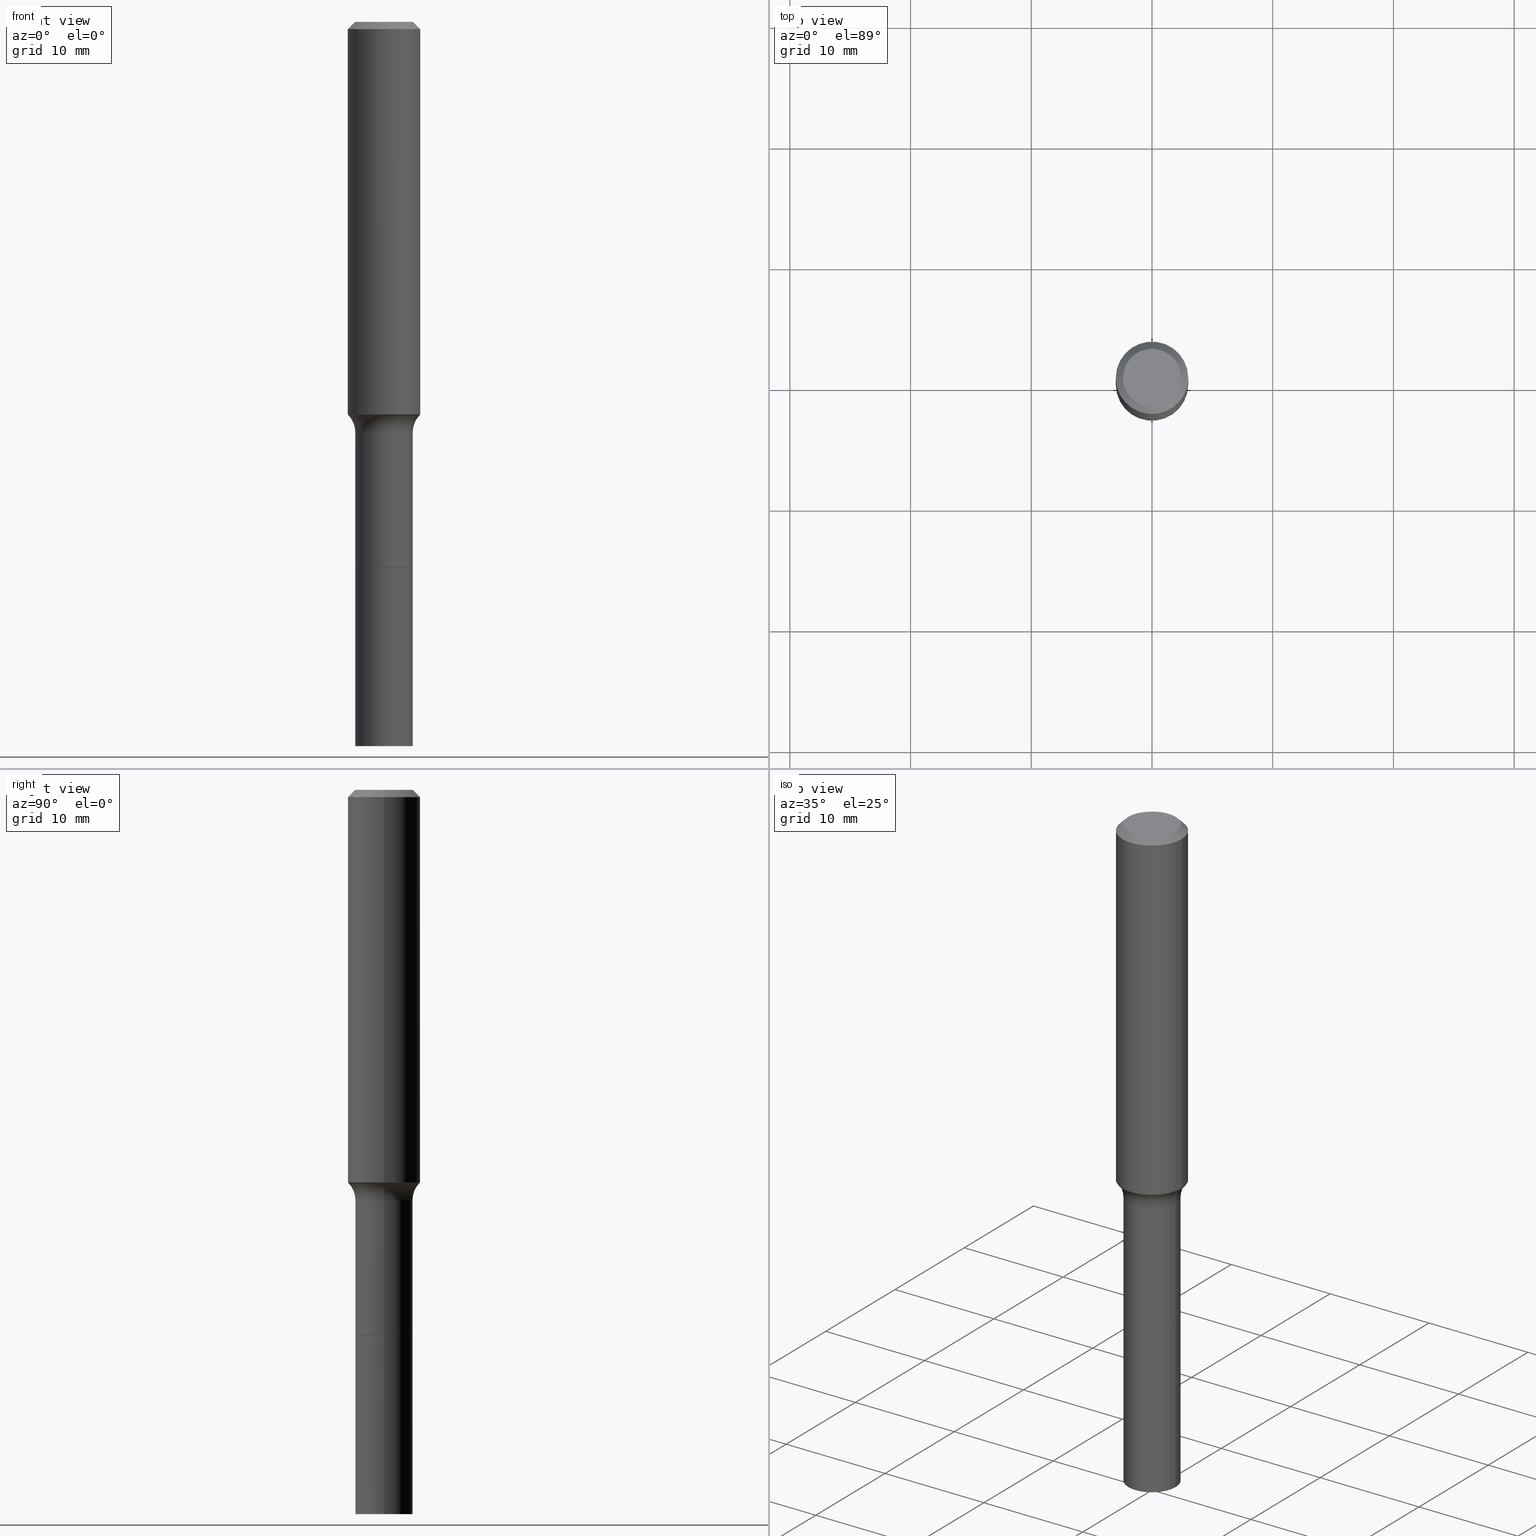
[diagram: canonical four-view strip — front | top / right | iso, engineering-drawing reading convention]
A machine part, canonical four-view strip (front | top / right | iso — engineering-drawing reading convention). The complete STEP part file that produces these views, byte-faithful:
ISO-10303-21;
HEADER;
FILE_DESCRIPTION (( 'STEP AP203' ),
    '1' );
FILE_NAME ('58814.STEP',
    '2025-04-01T15:25:16',
    ( '' ),
    ( '' ),
    'SwSTEP 2.0',
    'SolidWorks 2024',
    '' );
FILE_SCHEMA (( 'CONFIG_CONTROL_DESIGN' ));
ENDSEC;

DATA;
#1 = ORIENTED_EDGE ( 'NONE', *, *, #401, .F. ) ;
#2 = CIRCLE ( 'NONE', #53, 0.09375000000000001388 ) ;
#3 = AXIS2_PLACEMENT_3D ( 'NONE', #310, #108, #66 ) ;
#4 = EDGE_LOOP ( 'NONE', ( #306, #396, #493, #312 ) ) ;
#5 = FACE_OUTER_BOUND ( 'NONE', #321, .T. ) ;
#6 = EDGE_CURVE ( 'NONE', #352, #118, #2, .T. ) ;
#7 = ORIENTED_EDGE ( 'NONE', *, *, #231, .F. ) ;
#8 = EDGE_LOOP ( 'NONE', ( #204, #317, #486, #475 ) ) ;
#9 = VERTEX_POINT ( 'NONE', #397 ) ;
#10 = CARTESIAN_POINT ( 'NONE',  ( -0.1152417038704663249, -3.662964008439744293E-15, -1.283640131194999867 ) ) ;
#11 = VECTOR ( 'NONE', #170, 39.37007874015748143 ) ;
#12 = CARTESIAN_POINT ( 'NONE',  ( 0.1152417038704663804, -5.286534080897948923E-15, -1.283640131194999867 ) ) ;
#13 = ADVANCED_FACE ( 'NONE', ( #49 ), #124, .T. ) ;
#14 = DIRECTION ( 'NONE',  ( -2.445468806185136877E-29, 3.491481338843145188E-15, 1.000000000000000000 ) ) ;
#15 = CARTESIAN_POINT ( 'NONE',  ( -0.09324999999999998568, -5.546813269799320197E-15, -1.779199999999999893 ) ) ;
#16 = CYLINDRICAL_SURFACE ( 'NONE', #134, 0.09375000000000006939 ) ;
#17 = AXIS2_PLACEMENT_3D ( 'NONE', #64, #294, #429 ) ;
#18 = CIRCLE ( 'NONE', #171, 0.08000000000000007105 ) ;
#19 = CIRCLE ( 'NONE', #421, 0.1180999999999999966 ) ;
#20 = ADVANCED_FACE ( 'NONE', ( #5 ), #449, .T. ) ;
#21 =( NAMED_UNIT ( * ) PLANE_ANGLE_UNIT ( ) SI_UNIT ( $, .RADIAN. ) );
#22 = CARTESIAN_POINT ( 'NONE',  ( 5.776197320209328408E-31, -8.246878922347560526E-17, -0.02362000000000014435 ) ) ;
#23 = AXIS2_PLACEMENT_3D ( 'NONE', #485, #155, #222 ) ;
#24 = ADVANCED_FACE ( 'NONE', ( #168 ), #287, .F. ) ;
#25 = DIRECTION ( 'NONE',  ( -2.445468806185136877E-29, 3.491481338843145188E-15, 1.000000000000000000 ) ) ;
#26 = DIRECTION ( 'NONE',  ( 1.000000000000000000, -6.982962677686266711E-15, 4.876176775795936353E-29 ) ) ;
#27 = DIRECTION ( 'NONE',  ( -2.445468806185136597E-29, 3.491481338843145583E-15, 1.000000000000000000 ) ) ;
#28 = PERSON_AND_ORGANIZATION ( #355, #298 ) ;
#29 = DIRECTION ( 'NONE',  ( 7.105427357601001859E-15, 1.000000000000000000, -3.491481338843145583E-15 ) ) ;
#30 = AXIS2_PLACEMENT_3D ( 'NONE', #383, #188, #300 ) ;
#31 = AXIS2_PLACEMENT_3D ( 'NONE', #175, #218, #26 ) ;
#32 = CC_DESIGN_DATE_AND_TIME_ASSIGNMENT ( #428, #309, ( #130 ) ) ;
#33 = DIRECTION ( 'NONE',  ( -2.445468806185136597E-29, 3.491481338843145583E-15, 1.000000000000000000 ) ) ;
#34 = ORIENTED_EDGE ( 'NONE', *, *, #496, .T. ) ;
#35 = LINE ( 'NONE', #270, #500 ) ;
#36 = ORIENTED_EDGE ( 'NONE', *, *, #504, .F. ) ;
#37 = AXIS2_PLACEMENT_3D ( 'NONE', #440, #456, #86 ) ;
#38 = CONICAL_SURFACE ( 'NONE', #414, 0.1180999999999999966, 0.7853981633974461696 ) ;
#39 = CARTESIAN_POINT ( 'NONE',  ( 0.09375000000000006939, -6.866696349102812717E-15, -1.779199999999999893 ) ) ;
#40 = VERTEX_POINT ( 'NONE', #242 ) ;
#41 = DIRECTION ( 'NONE',  ( -2.445468806185136597E-29, 3.491481338843145583E-15, 1.000000000000000000 ) ) ;
#42 = LINE ( 'NONE', #200, #50 ) ;
#43 = VERTEX_POINT ( 'NONE', #15 ) ;
#44 = CARTESIAN_POINT ( 'NONE',  ( 4.349755365561502845E-29, -6.210297857400303709E-15, -1.778700000000000170 ) ) ;
#45 = DIRECTION ( 'NONE',  ( -2.438088387897960049E-29, 3.491481338843145188E-15, 1.000000000000000000 ) ) ;
#46 = ORIENTED_EDGE ( 'NONE', *, *, #517, .F. ) ;
#47 = ADVANCED_FACE ( 'NONE', ( #157 ), #376, .T. ) ;
#48 = APPLICATION_PROTOCOL_DEFINITION ( 'international standard', 'config_control_design', 1994, #476 ) ;
#49 = FACE_OUTER_BOUND ( 'NONE', #8, .T. ) ;
#50 = VECTOR ( 'NONE', #436, 39.37007874015748143 ) ;
#51 = VERTEX_POINT ( 'NONE', #12 ) ;
#52 = DIRECTION ( 'NONE',  ( -2.445468806185136597E-29, 3.491481338843145583E-15, 1.000000000000000000 ) ) ;
#53 = AXIS2_PLACEMENT_3D ( 'NONE', #44, #487, #83 ) ;
#54 = CALENDAR_DATE ( 2025, 1, 4 ) ;
#55 = EDGE_CURVE ( 'NONE', #269, #322, #88, .T. ) ;
#56 = DIRECTION ( 'NONE',  ( 0.7071067811866320607, -2.468850131083142557E-15, 0.7071067811864629737 ) ) ;
#57 = APPROVAL_STATUS ( 'not_yet_approved' ) ;
#58 = COORDINATED_UNIVERSAL_TIME_OFFSET ( 5, 0, .BEHIND. ) ;
#59 = CARTESIAN_POINT ( 'NONE',  ( 0.000000000000000000, 0.000000000000000000, 0.000000000000000000 ) ) ;
#60 = EDGE_CURVE ( 'NONE', #51, #269, #360, .T. ) ;
#61 = CARTESIAN_POINT ( 'NONE',  ( 0.09447999999999998066, -7.704367267948738690E-16, -3.085620075131172158E-17 ) ) ;
#62 = AXIS2_PLACEMENT_3D ( 'NONE', #237, #313, #407 ) ;
#63 = DIRECTION ( 'NONE',  ( -2.445468806185136597E-29, 3.491481338843145583E-15, 1.000000000000000000 ) ) ;
#64 = CARTESIAN_POINT ( 'NONE',  ( 7.545787641473140628E-46, -1.077338491108201769E-31, -3.085620075131671975E-17 ) ) ;
#65 = DIRECTION ( 'NONE',  ( 1.000000000000000000, -6.982962677686261189E-15, 0.000000000000000000 ) ) ;
#66 = DIRECTION ( 'NONE',  ( 1.000000000000000000, 0.000000000000000000, 0.000000000000000000 ) ) ;
#67 = COORDINATED_UNIVERSAL_TIME_OFFSET ( 5, 0, .BEHIND. ) ;
#68 = DIRECTION ( 'NONE',  ( 1.000000000000000000, -6.982962677686268288E-15, 4.883557194083112901E-29 ) ) ;
#69 = EDGE_CURVE ( 'NONE', #388, #424, #335, .T. ) ;
#70 = AXIS2_PLACEMENT_3D ( 'NONE', #90, #326, #128 ) ;
#71 = LOCAL_TIME ( 11, 25, 16.00000000000000000, #58 ) ;
#72 = FACE_OUTER_BOUND ( 'NONE', #87, .T. ) ;
#73 = EDGE_LOOP ( 'NONE', ( #1, #197 ) ) ;
#74 = MANIFOLD_SOLID_BREP ( 'Body-Move/Copy2[2]', #160 ) ;
#75 =( NAMED_UNIT ( * ) SI_UNIT ( $, .STERADIAN. ) SOLID_ANGLE_UNIT ( ) );
#76 = CARTESIAN_POINT ( 'NONE',  ( 0.09375000000000001388, -6.866696349102811928E-15, -1.779199999999999893 ) ) ;
#77 = ORIENTED_EDGE ( 'NONE', *, *, #136, .F. ) ;
#78 = CC_DESIGN_PERSON_AND_ORGANIZATION_ASSIGNMENT ( #417, #211, ( #205 ) ) ;
#79 = FACE_OUTER_BOUND ( 'NONE', #516, .T. ) ;
#80 = CIRCLE ( 'NONE', #144, 0.1180999999999999966 ) ;
#81 = ORIENTED_EDGE ( 'NONE', *, *, #295, .T. ) ;
#82 = APPROVAL_PERSON_ORGANIZATION ( #448, #217, #247 ) ;
#83 = DIRECTION ( 'NONE',  ( 1.000000000000000000, -6.982962677686261189E-15, 0.000000000000000000 ) ) ;
#84 = CARTESIAN_POINT ( 'NONE',  ( -0.1181000000000001493, -3.631952688209819497E-15, -1.280574983861703098 ) ) ;
#85 = ORIENTED_EDGE ( 'NONE', *, *, #164, .T. ) ;
#86 = DIRECTION ( 'NONE',  ( -1.000000000000000000, 6.982962677686265922E-15, -4.876176775795935793E-29 ) ) ;
#87 = EDGE_LOOP ( 'NONE', ( #392, #437, #363, #249 ) ) ;
#88 = LINE ( 'NONE', #10, #285 ) ;
#89 = EDGE_CURVE ( 'NONE', #223, #153, #348, .T. ) ;
#90 = CARTESIAN_POINT ( 'NONE',  ( 3.139101899204768444E-29, -4.481805563857509473E-15, -1.283640131194999867 ) ) ;
#91 = CARTESIAN_POINT ( 'NONE',  ( 4.350978099964594525E-29, -6.212043598069725213E-15, -1.779199999999999893 ) ) ;
#92 = CALENDAR_DATE ( 2025, 1, 4 ) ;
#93 = CC_DESIGN_PERSON_AND_ORGANIZATION_ASSIGNMENT ( #281, #166, ( #115 ) ) ;
#94 = DIRECTION ( 'NONE',  ( -2.445468806185136597E-29, 3.491481338843145583E-15, 1.000000000000000000 ) ) ;
#95 = APPROVAL_DATE_TIME ( #373, #460 ) ;
#96 = AXIS2_PLACEMENT_3D ( 'NONE', #110, #514, #181 ) ;
#97 = DIRECTION ( 'NONE',  ( -1.000000000000000000, 6.982962677686266711E-15, 0.000000000000000000 ) ) ;
#98 = CIRCLE ( 'NONE', #490, 0.09324999999999998568 ) ;
#99 = PERSON_AND_ORGANIZATION_ROLE ( 'classification_officer' ) ;
#100 = CARTESIAN_POINT ( 'NONE',  ( 0.1180999999999999966, -8.926936027602933910E-16, -0.02362000000000014435 ) ) ;
#101 = CARTESIAN_POINT ( 'NONE',  ( 4.350978099964594525E-29, -6.212043598069725213E-15, -1.779199999999999893 ) ) ;
#102 = EDGE_CURVE ( 'NONE', #43, #352, #207, .T. ) ;
#103 = DATE_TIME_ROLE ( 'classification_date' ) ;
#104 = CARTESIAN_POINT ( 'NONE',  ( 0.09375000000000001388, -6.864950608433390424E-15, -1.778700000000000170 ) ) ;
#105 = DIRECTION ( 'NONE',  ( 1.000000000000000000, -6.982962677686265922E-15, 0.000000000000000000 ) ) ;
#106 = ORIENTED_EDGE ( 'NONE', *, *, #337, .F. ) ;
#107 = FACE_OUTER_BOUND ( 'NONE', #120, .T. ) ;
#108 = DIRECTION ( 'NONE',  ( 0.000000000000000000, 0.000000000000000000, 1.000000000000000000 ) ) ;
#109 = ADVANCED_FACE ( 'NONE', ( #366 ), #133, .T. ) ;
#110 = CARTESIAN_POINT ( 'NONE',  ( 3.272526356436949336E-29, -4.672300327639896745E-15, -1.338200000000000056 ) ) ;
#111 = DIRECTION ( 'NONE',  ( 1.000000000000000000, -6.982962677686266711E-15, 4.876176775795935793E-29 ) ) ;
#112 = CIRCLE ( 'NONE', #466, 0.09375000000000001388 ) ;
#113 = CIRCLE ( 'NONE', #431, 0.1152417038704663249 ) ;
#114 = ORIENTED_EDGE ( 'NONE', *, *, #69, .T. ) ;
#115 = PRODUCT ( '58814', '58814', '', ( #399 ) ) ;
#116 = DIRECTION ( 'NONE',  ( 1.000000000000000000, -6.982962677686263555E-15, 0.000000000000000000 ) ) ;
#117 = ADVANCED_FACE ( 'NONE', ( #121 ), #272, .T. ) ;
#118 = VERTEX_POINT ( 'NONE', #104 ) ;
#119 = DIRECTION ( 'NONE',  ( -2.445468806185136597E-29, 3.491481338843145583E-15, 1.000000000000000000 ) ) ;
#120 = EDGE_LOOP ( 'NONE', ( #154, #229, #276, #398 ) ) ;
#121 = FACE_OUTER_BOUND ( 'NONE', #198, .T. ) ;
#122 = EDGE_LOOP ( 'NONE', ( #258, #353, #34, #390 ) ) ;
#123 = CIRCLE ( 'NONE', #227, 0.09324999999999998568 ) ;
#124 = CYLINDRICAL_SURFACE ( 'NONE', #452, 0.1181000000000000660 ) ;
#125 = DIRECTION ( 'NONE',  ( 1.000000000000000000, -6.982962677686268288E-15, 4.883557194083112901E-29 ) ) ;
#126 = DIRECTION ( 'NONE',  ( 1.000000000000000000, -6.982962677686263555E-15, 0.000000000000000000 ) ) ;
#127 = ORIENTED_EDGE ( 'NONE', *, *, #164, .F. ) ;
#128 = DIRECTION ( 'NONE',  ( 1.000000000000000000, -6.982962677686263555E-15, 0.000000000000000000 ) ) ;
#129 = LENGTH_MEASURE_WITH_UNIT ( LENGTH_MEASURE( 0.02539999999999999897 ), #230 );
#130 = PRODUCT_DEFINITION ( 'UNKNOWN', '', #205, #341 ) ;
#131 = ORIENTED_EDGE ( 'NONE', *, *, #330, .T. ) ;
#132 = DIRECTION ( 'NONE',  ( 1.000000000000000000, -6.982962677686269077E-15, 0.000000000000000000 ) ) ;
#133 = CONICAL_SURFACE ( 'NONE', #420, 0.09324999999999998568, 0.7853981633975678500 ) ;
#134 = AXIS2_PLACEMENT_3D ( 'NONE', #101, #63, #328 ) ;
#135 = COORDINATED_UNIVERSAL_TIME_OFFSET ( 5, 0, .BEHIND. ) ;
#136 = EDGE_CURVE ( 'NONE', #424, #388, #499, .T. ) ;
#137 = DIRECTION ( 'NONE',  ( 0.6819983600624985876, -2.208861293262476197E-15, 0.7313537016191703488 ) ) ;
#138 = AXIS2_PLACEMENT_3D ( 'NONE', #375, #381, #461 ) ;
#139 = CARTESIAN_POINT ( 'NONE',  ( 0.1737499999999999600, -5.885590092887885901E-15, -1.338200000000000056 ) ) ;
#140 = ORIENTED_EDGE ( 'NONE', *, *, #433, .T. ) ;
#141 = FACE_OUTER_BOUND ( 'NONE', #122, .T. ) ;
#142 = CARTESIAN_POINT ( 'NONE',  ( 3.272526356436949336E-29, -4.672300327639896745E-15, -1.338200000000000056 ) ) ;
#143 = ORIENTED_EDGE ( 'NONE', *, *, #192, .T. ) ;
#144 = AXIS2_PLACEMENT_3D ( 'NONE', #22, #219, #463 ) ;
#145 = LOCAL_TIME ( 11, 25, 16.00000000000000000, #67 ) ;
#146 = DIRECTION ( 'NONE',  ( -2.445468806185136597E-29, 3.491481338843145583E-15, 1.000000000000000000 ) ) ;
#147 = ADVANCED_FACE ( 'NONE', ( #141 ), #506, .T. ) ;
#148 = CARTESIAN_POINT ( 'NONE',  ( 4.350978099964594525E-29, -6.212043598069725213E-15, -1.779199999999999893 ) ) ;
#149 = ORIENTED_EDGE ( 'NONE', *, *, #246, .T. ) ;
#150 = ORIENTED_EDGE ( 'NONE', *, *, #60, .T. ) ;
#151 = ADVANCED_FACE ( 'NONE', ( #107 ), #413, .F. ) ;
#152 = VECTOR ( 'NONE', #137, 39.37007874015748143 ) ;
#153 = VERTEX_POINT ( 'NONE', #339 ) ;
#154 = ORIENTED_EDGE ( 'NONE', *, *, #370, .F. ) ;
#155 = DIRECTION ( 'NONE',  ( -2.445468806185136597E-29, 3.491481338843145583E-15, 1.000000000000000000 ) ) ;
#156 = VERTEX_POINT ( 'NONE', #469 ) ;
#157 = FACE_OUTER_BOUND ( 'NONE', #439, .T. ) ;
#158 = ORIENTED_EDGE ( 'NONE', *, *, #330, .F. ) ;
#159 = CARTESIAN_POINT ( 'NONE',  ( 3.772893820736570314E-46, -5.386692455541008845E-32, -1.542810037565835988E-17 ) ) ;
#160 = CLOSED_SHELL ( 'NONE', ( #109, #488, #13, #47, #151, #283, #302, #444, #384, #473, #467, #290, #455, #147 ) ) ;
#161 = ORIENTED_EDGE ( 'NONE', *, *, #425, .F. ) ;
#162 = AXIS2_PLACEMENT_3D ( 'NONE', #325, #94, #125 ) ;
#163 = VERTEX_POINT ( 'NONE', #510 ) ;
#164 = EDGE_CURVE ( 'NONE', #474, #40, #318, .T. ) ;
#165 = CARTESIAN_POINT ( 'NONE',  ( 5.776197320209328408E-31, -8.246878922347560526E-17, -0.02362000000000014435 ) ) ;
#166 = PERSON_AND_ORGANIZATION_ROLE ( 'design_owner' ) ;
#167 = CARTESIAN_POINT ( 'NONE',  ( -0.09324999999999998568, -5.549462496973431398E-15, -1.779199999999999893 ) ) ;
#168 = FACE_OUTER_BOUND ( 'NONE', #228, .T. ) ;
#169 = CC_DESIGN_PERSON_AND_ORGANIZATION_ASSIGNMENT ( #28, #472, ( #130 ) ) ;
#170 = DIRECTION ( 'NONE',  ( -2.445468806185136877E-29, 3.491481338843145188E-15, 1.000000000000000000 ) ) ;
#171 = AXIS2_PLACEMENT_3D ( 'NONE', #214, #29, #220 ) ;
#172 = CIRCLE ( 'NONE', #304, 0.09375000000000001388 ) ;
#173 = LOCAL_TIME ( 11, 25, 16.00000000000000000, #462 ) ;
#174 = EDGE_CURVE ( 'NONE', #269, #223, #18, .T. ) ;
#175 = CARTESIAN_POINT ( 'NONE',  ( 0.000000000000000000, 0.000000000000000000, 0.000000000000000000 ) ) ;
#176 =( GEOMETRIC_REPRESENTATION_CONTEXT ( 3 ) GLOBAL_UNCERTAINTY_ASSIGNED_CONTEXT ( ( #316 ) ) GLOBAL_UNIT_ASSIGNED_CONTEXT ( ( #324, #21, #75 ) ) REPRESENTATION_CONTEXT ( 'NONE', 'WORKASPACE' ) );
#177 = APPROVAL_DATE_TIME ( #503, #410 ) ;
#178 = DIRECTION ( 'NONE',  ( 1.000000000000000000, -6.982962677686269077E-15, 0.000000000000000000 ) ) ;
#179 = ORIENTED_EDGE ( 'NONE', *, *, #55, .F. ) ;
#180 = FACE_OUTER_BOUND ( 'NONE', #358, .T. ) ;
#181 = DIRECTION ( 'NONE',  ( 1.000000000000000000, -6.982962677686265922E-15, 0.000000000000000000 ) ) ;
#182 = DIRECTION ( 'NONE',  ( 2.445468806185136597E-29, -3.491481338843145583E-15, -1.000000000000000000 ) ) ;
#183 = DIRECTION ( 'NONE',  ( 1.000000000000000000, -6.982962677686269077E-15, 0.000000000000000000 ) ) ;
#184 = EDGE_CURVE ( 'NONE', #386, #266, #112, .T. ) ;
#185 = ORIENTED_EDGE ( 'NONE', *, *, #208, .T. ) ;
#186 = AXIS2_PLACEMENT_3D ( 'NONE', #497, #41, #403 ) ;
#187 = AXIS2_PLACEMENT_3D ( 'NONE', #445, #45, #365 ) ;
#188 = DIRECTION ( 'NONE',  ( -2.445468806185136597E-29, 3.491481338843145583E-15, 1.000000000000000000 ) ) ;
#189 = LINE ( 'NONE', #193, #342 ) ;
#190 = ORIENTED_EDGE ( 'NONE', *, *, #184, .T. ) ;
#191 = VERTEX_POINT ( 'NONE', #338 ) ;
#192 = EDGE_CURVE ( 'NONE', #40, #474, #226, .T. ) ;
#193 = CARTESIAN_POINT ( 'NONE',  ( 0.1181000000000000660, -8.246878922347485584E-16, 5.758764772215003944E-30 ) ) ;
#194 = ORIENTED_EDGE ( 'NONE', *, *, #102, .T. ) ;
#195 = DIRECTION ( 'NONE',  ( -2.445468806185136877E-29, 3.491481338843145188E-15, 1.000000000000000000 ) ) ;
#196 = TOROIDAL_SURFACE ( 'NONE', #162, 0.1737499999999999600, 0.08000000000000007105 ) ;
#197 = ORIENTED_EDGE ( 'NONE', *, *, #253, .F. ) ;
#198 = EDGE_LOOP ( 'NONE', ( #209, #81, #303, #158 ) ) ;
#199 = DIRECTION ( 'NONE',  ( -2.445468806185136597E-29, 3.491481338843145583E-15, 1.000000000000000000 ) ) ;
#200 = CARTESIAN_POINT ( 'NONE',  ( -0.1180999999999999966, 7.422191030112725094E-16, -0.02362000000000014435 ) ) ;
#201 = EDGE_CURVE ( 'NONE', #153, #223, #297, .T. ) ;
#202 = ORIENTED_EDGE ( 'NONE', *, *, #391, .F. ) ;
#203 = DIRECTION ( 'NONE',  ( -2.445468806185136597E-29, 3.491481338843145583E-15, 1.000000000000000000 ) ) ;
#204 = ORIENTED_EDGE ( 'NONE', *, *, #337, .T. ) ;
#205 = PRODUCT_DEFINITION_FORMATION_WITH_SPECIFIED_SOURCE ( 'ANY', '', #115, .NOT_KNOWN. ) ;
#206 = APPROVAL_STATUS ( 'not_yet_approved' ) ;
#207 = LINE ( 'NONE', #167, #430 ) ;
#208 = EDGE_CURVE ( 'NONE', #9, #156, #80, .T. ) ;
#209 = ORIENTED_EDGE ( 'NONE', *, *, #136, .T. ) ;
#210 = DIRECTION ( 'NONE',  ( -2.445468806185136597E-29, 3.491481338843145583E-15, 1.000000000000000000 ) ) ;
#211 = PERSON_AND_ORGANIZATION_ROLE ( 'design_supplier' ) ;
#212 = AXIS2_PLACEMENT_3D ( 'NONE', #305, #478, #116 ) ;
#213 = EDGE_CURVE ( 'NONE', #352, #223, #422, .T. ) ;
#214 = CARTESIAN_POINT ( 'NONE',  ( -0.1737499999999999600, -3.437732324256722956E-15, -1.338200000000000056 ) ) ;
#215 = AXIS2_PLACEMENT_3D ( 'NONE', #241, #235, #451 ) ;
#216 = CYLINDRICAL_SURFACE ( 'NONE', #468, 0.09374999999999998612 ) ;
#217 = APPROVAL ( #206, 'UNSPECIFIED' ) ;
#218 = DIRECTION ( 'NONE',  ( -2.445468806185136597E-29, 3.491481338843145583E-15, 1.000000000000000000 ) ) ;
#219 = DIRECTION ( 'NONE',  ( -2.445468806185136597E-29, 3.491481338843145583E-15, 1.000000000000000000 ) ) ;
#220 = DIRECTION ( 'NONE',  ( -1.000000000000000000, 7.105427357600997914E-15, 0.000000000000000000 ) ) ;
#221 = VECTOR ( 'NONE', #56, 39.37007874015748143 ) ;
#222 = DIRECTION ( 'NONE',  ( 1.000000000000000000, -6.982962677686266711E-15, 4.876176775795935793E-29 ) ) ;
#223 = VERTEX_POINT ( 'NONE', #296 ) ;
#224 = ORIENTED_EDGE ( 'NONE', *, *, #425, .T. ) ;
#225 = ORIENTED_EDGE ( 'NONE', *, *, #344, .T. ) ;
#226 = CIRCLE ( 'NONE', #17, 0.09447999999999998066 ) ;
#227 = AXIS2_PLACEMENT_3D ( 'NONE', #411, #52, #327 ) ;
#228 = EDGE_LOOP ( 'NONE', ( #190, #140 ) ) ;
#229 = ORIENTED_EDGE ( 'NONE', *, *, #174, .T. ) ;
#230 =( LENGTH_UNIT ( ) NAMED_UNIT ( * ) SI_UNIT ( $, .METRE. ) );
#231 = EDGE_CURVE ( 'NONE', #322, #156, #513, .T. ) ;
#232 = LINE ( 'NONE', #39, #240 ) ;
#233 = DIMENSIONAL_EXPONENTS ( 1.000000000000000000, 0.000000000000000000, 0.000000000000000000, 0.000000000000000000, 0.000000000000000000, 0.000000000000000000, 0.000000000000000000 ) ;
#234 = ORIENTED_EDGE ( 'NONE', *, *, #517, .T. ) ;
#235 = DIRECTION ( 'NONE',  ( 2.438088387897960049E-29, -3.491481338843145188E-15, -1.000000000000000000 ) ) ;
#236 = ORIENTED_EDGE ( 'NONE', *, *, #213, .T. ) ;
#237 = CARTESIAN_POINT ( 'NONE',  ( 5.776686413970529753E-29, -8.247577218615279626E-15, -2.362200000000000077 ) ) ;
#238 = LINE ( 'NONE', #406, #256 ) ;
#239 = EDGE_CURVE ( 'NONE', #51, #153, #377, .T. ) ;
#240 = VECTOR ( 'NONE', #308, 39.37007874015748143 ) ;
#241 = CARTESIAN_POINT ( 'NONE',  ( 5.776686413970529753E-29, -8.247577218615279626E-15, -2.362200000000000077 ) ) ;
#242 = CARTESIAN_POINT ( 'NONE',  ( -0.09447999999999998066, 7.009847083995354710E-16, -3.085620075132147757E-17 ) ) ;
#243 = SECURITY_CLASSIFICATION_LEVEL ( 'unclassified' ) ;
#244 = AXIS2_PLACEMENT_3D ( 'NONE', #387, #33, #481 ) ;
#245 = LINE ( 'NONE', #416, #221 ) ;
#246 = EDGE_CURVE ( 'NONE', #322, #191, #286, .T. ) ;
#247 = APPROVAL_ROLE ( '' ) ;
#248 = DATE_AND_TIME ( #92, #173 ) ;
#249 = ORIENTED_EDGE ( 'NONE', *, *, #89, .F. ) ;
#250 = FACE_OUTER_BOUND ( 'NONE', #271, .T. ) ;
#251 = ORIENTED_EDGE ( 'NONE', *, *, #295, .F. ) ;
#252 = CARTESIAN_POINT ( 'NONE',  ( -0.09374999999999998612, 6.661338147750938256E-16, -4.611501647113973295E-30 ) ) ;
#253 = EDGE_CURVE ( 'NONE', #43, #163, #98, .T. ) ;
#254 = AXIS2_PLACEMENT_3D ( 'NONE', #257, #427, #418 ) ;
#255 = DIRECTION ( 'NONE',  ( -1.000000000000000000, 6.982962677686266711E-15, 0.000000000000000000 ) ) ;
#256 = VECTOR ( 'NONE', #14, 39.37007874015748143 ) ;
#257 = CARTESIAN_POINT ( 'NONE',  ( 5.776686413970529753E-29, -8.247577218615279626E-15, -2.362200000000000077 ) ) ;
#258 = ORIENTED_EDGE ( 'NONE', *, *, #102, .F. ) ;
#259 = CARTESIAN_POINT ( 'NONE',  ( 5.776197320209328408E-31, -8.246878922347560526E-17, -0.02362000000000014435 ) ) ;
#260 = DIRECTION ( 'NONE',  ( -6.982962677686266711E-15, -1.000000000000000000, 3.491481338843145583E-15 ) ) ;
#261 = CARTESIAN_POINT ( 'NONE',  ( -0.1152417038704663804, -3.662964008439744293E-15, -1.283640131194999867 ) ) ;
#262 = EDGE_LOOP ( 'NONE', ( #251, #114, #131, #315 ) ) ;
#263 = AXIS2_PLACEMENT_3D ( 'NONE', #354, #502, #508 ) ;
#264 = DIRECTION ( 'NONE',  ( 2.438088387897960049E-29, -3.491481338843145188E-15, -1.000000000000000000 ) ) ;
#265 = CC_DESIGN_PERSON_AND_ORGANIZATION_ASSIGNMENT ( #329, #334, ( #205 ) ) ;
#266 = VERTEX_POINT ( 'NONE', #340 ) ;
#267 = APPLICATION_PROTOCOL_DEFINITION ( 'international standard', 'config_control_design', 1994, #389 ) ;
#268 = EDGE_LOOP ( 'NONE', ( #280, #194, #434, #480 ) ) ;
#269 = VERTEX_POINT ( 'NONE', #261 ) ;
#270 = CARTESIAN_POINT ( 'NONE',  ( -0.09375000000000006939, -5.545909783294630499E-15, -1.779199999999999893 ) ) ;
#271 = EDGE_LOOP ( 'NONE', ( #438, #236, #447, #202 ) ) ;
#272 = CYLINDRICAL_SURFACE ( 'NONE', #263, 0.09375000000000006939 ) ;
#273 = ADVANCED_FACE ( 'NONE', ( #368 ), #16, .T. ) ;
#274 = CLOSED_SHELL ( 'NONE', ( #117, #20, #273, #24 ) ) ;
#275 = AXIS2_PLACEMENT_3D ( 'NONE', #139, #260, #105 ) ;
#276 = ORIENTED_EDGE ( 'NONE', *, *, #89, .T. ) ;
#277 = CARTESIAN_POINT ( 'NONE',  ( 3.139101899204768444E-29, -4.481805563857509473E-15, -1.283640131194999867 ) ) ;
#278 = PRODUCT_DEFINITION_SHAPE ( 'NONE', 'NONE',  #130 ) ;
#279 = PLANE ( 'NONE',  #187 ) ;
#280 = ORIENTED_EDGE ( 'NONE', *, *, #401, .T. ) ;
#281 = PERSON_AND_ORGANIZATION ( #355, #298 ) ;
#282 = DIRECTION ( 'NONE',  ( 1.000000000000000000, -6.982962677686266711E-15, 4.876176775795936353E-29 ) ) ;
#283 = ADVANCED_FACE ( 'NONE', ( #250 ), #216, .T. ) ;
#284 = ORIENTED_EDGE ( 'NONE', *, *, #349, .T. ) ;
#285 = VECTOR ( 'NONE', #494, 39.37007874015748143 ) ;
#286 = CIRCLE ( 'NONE', #138, 0.1181000000000001493 ) ;
#287 = PLANE ( 'NONE',  #37 ) ;
#288 = DIRECTION ( 'NONE',  ( 1.000000000000000000, -6.982962677686261189E-15, 0.000000000000000000 ) ) ;
#289 = PERSON_AND_ORGANIZATION ( #355, #298 ) ;
#290 = ADVANCED_FACE ( 'NONE', ( #79 ), #314, .F. ) ;
#291 = FACE_OUTER_BOUND ( 'NONE', #442, .T. ) ;
#292 = DIRECTION ( 'NONE',  ( -2.445468806185136597E-29, 3.491481338843145583E-15, 1.000000000000000000 ) ) ;
#293 = APPROVAL_ROLE ( '' ) ;
#294 = DIRECTION ( 'NONE',  ( -2.445468806185136597E-29, 3.491481338843145583E-15, 1.000000000000000000 ) ) ;
#295 = EDGE_CURVE ( 'NONE', #388, #266, #35, .T. ) ;
#296 = CARTESIAN_POINT ( 'NONE',  ( -0.09374999999999995837, -4.775165277745006303E-15, -1.338200000000000056 ) ) ;
#297 = CIRCLE ( 'NONE', #96, 0.09374999999999995837 ) ;
#298 = ORGANIZATION ( 'UNSPECIFIED', 'UNSPECIFIED', '' ) ;
#299 = VECTOR ( 'NONE', #498, 39.37007874015748143 ) ;
#300 = DIRECTION ( 'NONE',  ( 1.000000000000000000, -6.982962677686267499E-15, 4.875432709231658792E-29 ) ) ;
#301 = DATE_AND_TIME ( #465, #71 ) ;
#302 = ADVANCED_FACE ( 'NONE', ( #72 ), #446, .T. ) ;
#303 = ORIENTED_EDGE ( 'NONE', *, *, #184, .F. ) ;
#304 = AXIS2_PLACEMENT_3D ( 'NONE', #346, #119, #395 ) ;
#305 = CARTESIAN_POINT ( 'NONE',  ( 3.139101899204768444E-29, -4.481805563857509473E-15, -1.283640131194999867 ) ) ;
#306 = ORIENTED_EDGE ( 'NONE', *, *, #174, .F. ) ;
#307 = ORIENTED_EDGE ( 'NONE', *, *, #69, .F. ) ;
#308 = DIRECTION ( 'NONE',  ( -2.445468806185136877E-29, 3.491481338843145188E-15, 1.000000000000000000 ) ) ;
#309 = DATE_TIME_ROLE ( 'creation_date' ) ;
#310 = CARTESIAN_POINT ( 'NONE',  ( 0.000000000000000000, 0.000000000000000000, 0.000000000000000000 ) ) ;
#311 = PRODUCT_RELATED_PRODUCT_CATEGORY ( 'detail', '', ( #115 ) ) ;
#312 = ORIENTED_EDGE ( 'NONE', *, *, #201, .T. ) ;
#313 = DIRECTION ( 'NONE',  ( -2.445468806185136597E-29, 3.491481338843145583E-15, 1.000000000000000000 ) ) ;
#314 = PLANE ( 'NONE',  #394 ) ;
#315 = ORIENTED_EDGE ( 'NONE', *, *, #433, .F. ) ;
#316 = UNCERTAINTY_MEASURE_WITH_UNIT (LENGTH_MEASURE( 1.000000000000000082E-05 ), #324, 'distance_accuracy_value', 'NONE');
#317 = ORIENTED_EDGE ( 'NONE', *, *, #231, .T. ) ;
#318 = CIRCLE ( 'NONE', #30, 0.09447999999999998066 ) ;
#319 = DIRECTION ( 'NONE',  ( -1.000000000000000000, 6.982962677686265922E-15, -4.876176775795935793E-29 ) ) ;
#320 = AXIS2_PLACEMENT_3D ( 'NONE', #331, #426, #97 ) ;
#321 = EDGE_LOOP ( 'NONE', ( #77, #307 ) ) ;
#322 = VERTEX_POINT ( 'NONE', #84 ) ;
#323 = DIRECTION ( 'NONE',  ( 1.000000000000000000, -6.982962677686263555E-15, 0.000000000000000000 ) ) ;
#324 =( CONVERSION_BASED_UNIT ( 'INCH', #129 ) LENGTH_UNIT ( ) NAMED_UNIT ( #233 ) );
#325 = CARTESIAN_POINT ( 'NONE',  ( 3.272526356436949336E-29, -4.672300327639896745E-15, -1.338200000000000056 ) ) ;
#326 = DIRECTION ( 'NONE',  ( -2.445468806185136597E-29, 3.491481338843145583E-15, 1.000000000000000000 ) ) ;
#327 = DIRECTION ( 'NONE',  ( 1.000000000000000000, -6.982962677686269077E-15, 0.000000000000000000 ) ) ;
#328 = DIRECTION ( 'NONE',  ( 1.000000000000000000, -6.982962677686267499E-15, 0.000000000000000000 ) ) ;
#329 = PERSON_AND_ORGANIZATION ( #355, #298 ) ;
#330 = EDGE_CURVE ( 'NONE', #424, #386, #232, .T. ) ;
#331 = CARTESIAN_POINT ( 'NONE',  ( 5.776197320209328408E-31, -8.246878922347560526E-17, -0.02362000000000014435 ) ) ;
#332 = COORDINATED_UNIVERSAL_TIME_OFFSET ( 5, 0, .BEHIND. ) ;
#333 = LINE ( 'NONE', #505, #152 ) ;
#334 = PERSON_AND_ORGANIZATION_ROLE ( 'creator' ) ;
#335 = CIRCLE ( 'NONE', #62, 0.09375000000000013878 ) ;
#336 = LOCAL_TIME ( 11, 25, 16.00000000000000000, #135 ) ;
#337 = EDGE_CURVE ( 'NONE', #191, #322, #350, .T. ) ;
#338 = CARTESIAN_POINT ( 'NONE',  ( 0.1181000000000001493, -5.295791551377247535E-15, -1.280574983861703098 ) ) ;
#339 = CARTESIAN_POINT ( 'NONE',  ( 0.09374999999999995837, -5.326953078672984249E-15, -1.338200000000000056 ) ) ;
#340 = CARTESIAN_POINT ( 'NONE',  ( -0.09375000000000001388, -6.563676593567408101E-15, -1.779199999999999893 ) ) ;
#341 = DESIGN_CONTEXT ( 'detailed design', #476, 'design' ) ;
#342 = VECTOR ( 'NONE', #357, 39.37007874015748143 ) ;
#343 = CARTESIAN_POINT ( 'NONE',  ( 4.350978099964594525E-29, -6.212043598069725213E-15, -1.779199999999999893 ) ) ;
#344 = EDGE_CURVE ( 'NONE', #40, #156, #42, .T. ) ;
#345 = CARTESIAN_POINT ( 'NONE',  ( -0.09375000000000001388, -4.775165277745006303E-15, -1.778700000000000170 ) ) ;
#346 = CARTESIAN_POINT ( 'NONE',  ( 4.349755365561502845E-29, -6.210297857400303709E-15, -1.778700000000000170 ) ) ;
#347 = ORIENTED_EDGE ( 'NONE', *, *, #246, .F. ) ;
#348 = CIRCLE ( 'NONE', #186, 0.09374999999999995837 ) ;
#349 = EDGE_CURVE ( 'NONE', #191, #9, #189, .T. ) ;
#350 = CIRCLE ( 'NONE', #244, 0.1181000000000001493 ) ;
#351 = CC_DESIGN_APPROVAL ( #410, ( #477 ) ) ;
#352 = VERTEX_POINT ( 'NONE', #345 ) ;
#353 = ORIENTED_EDGE ( 'NONE', *, *, #253, .T. ) ;
#354 = CARTESIAN_POINT ( 'NONE',  ( 4.350978099964594525E-29, -6.212043598069725213E-15, -1.779199999999999893 ) ) ;
#355 = PERSON ( 'UNSPECIFIED', 'UNSPECIFIED', 'UNSPECIFIED', ('UNSPECIFIED'), ('UNSPECIFIED'), ('UNSPECIFIED') ) ;
#356 = FACE_OUTER_BOUND ( 'NONE', #4, .T. ) ;
#357 = DIRECTION ( 'NONE',  ( -2.445468806185136877E-29, 3.491481338843145188E-15, 1.000000000000000000 ) ) ;
#358 = EDGE_LOOP ( 'NONE', ( #127, #234, #185, #470 ) ) ;
#359 = CARTESIAN_POINT ( 'NONE',  ( 0.09375000000000013878, -8.902229969648367919E-15, -2.362200000000000077 ) ) ;
#360 = CIRCLE ( 'NONE', #70, 0.1152417038704663249 ) ;
#361 = CC_DESIGN_APPROVAL ( #217, ( #130 ) ) ;
#362 = ORIENTED_EDGE ( 'NONE', *, *, #192, .F. ) ;
#363 = ORIENTED_EDGE ( 'NONE', *, *, #391, .T. ) ;
#364 = EDGE_CURVE ( 'NONE', #118, #352, #172, .T. ) ;
#365 = DIRECTION ( 'NONE',  ( 1.000000000000000000, -6.982962677686265922E-15, 4.876176775795935793E-29 ) ) ;
#366 = FACE_OUTER_BOUND ( 'NONE', #268, .T. ) ;
#367 = APPROVAL_ROLE ( '' ) ;
#368 = FACE_OUTER_BOUND ( 'NONE', #262, .T. ) ;
#369 = DIRECTION ( 'NONE',  ( -2.445468806185136597E-29, 3.491481338843145583E-15, 1.000000000000000000 ) ) ;
#370 = EDGE_CURVE ( 'NONE', #269, #51, #113, .T. ) ;
#371 = AXIS2_PLACEMENT_3D ( 'NONE', #277, #203, #323 ) ;
#372 = CONICAL_SURFACE ( 'NONE', #320, 0.1180999999999999966, 0.7853981633974461696 ) ;
#373 = DATE_AND_TIME ( #54, #336 ) ;
#374 = CC_DESIGN_PERSON_AND_ORGANIZATION_ASSIGNMENT ( #289, #99, ( #477 ) ) ;
#375 = CARTESIAN_POINT ( 'NONE',  ( 3.131606177014830076E-29, -4.471103659142498483E-15, -1.280574983861703098 ) ) ;
#376 = CONICAL_SURFACE ( 'NONE', #371, 0.1152417038704663249, 0.7504915783575618615 ) ;
#377 = CIRCLE ( 'NONE', #275, 0.08000000000000007105 ) ;
#378 = SHAPE_DEFINITION_REPRESENTATION ( #278, #382 ) ;
#379 = DIRECTION ( 'NONE',  ( -2.445468806185136597E-29, 3.491481338843145583E-15, 1.000000000000000000 ) ) ;
#380 = CYLINDRICAL_SURFACE ( 'NONE', #31, 0.1181000000000000660 ) ;
#381 = DIRECTION ( 'NONE',  ( -2.445468806185136597E-29, 3.491481338843145583E-15, 1.000000000000000000 ) ) ;
#382 = ADVANCED_BREP_SHAPE_REPRESENTATION ( '58814', ( #415, #74, #3 ), #176 ) ;
#383 = CARTESIAN_POINT ( 'NONE',  ( 7.545787641473140628E-46, -1.077338491108201769E-31, -3.085620075131671975E-17 ) ) ;
#384 = ADVANCED_FACE ( 'NONE', ( #515 ), #441, .T. ) ;
#385 = AXIS2_PLACEMENT_3D ( 'NONE', #91, #369, #288 ) ;
#386 = VERTEX_POINT ( 'NONE', #76 ) ;
#387 = CARTESIAN_POINT ( 'NONE',  ( 3.131606177014830076E-29, -4.471103659142498483E-15, -1.280574983861703098 ) ) ;
#388 = VERTEX_POINT ( 'NONE', #450 ) ;
#389 = APPLICATION_CONTEXT ( 'configuration controlled 3d designs of mechanical parts and assemblies' ) ;
#390 = ORIENTED_EDGE ( 'NONE', *, *, #6, .F. ) ;
#391 = EDGE_CURVE ( 'NONE', #118, #153, #238, .T. ) ;
#392 = ORIENTED_EDGE ( 'NONE', *, *, #213, .F. ) ;
#393 = AXIS2_PLACEMENT_3D ( 'NONE', #464, #146, #178 ) ;
#394 = AXIS2_PLACEMENT_3D ( 'NONE', #159, #264, #319 ) ;
#395 = DIRECTION ( 'NONE',  ( 1.000000000000000000, -6.982962677686261189E-15, 0.000000000000000000 ) ) ;
#396 = ORIENTED_EDGE ( 'NONE', *, *, #60, .F. ) ;
#397 = CARTESIAN_POINT ( 'NONE',  ( 0.1180999999999999966, -9.071566814582237199E-16, -0.02362000000000014435 ) ) ;
#398 = ORIENTED_EDGE ( 'NONE', *, *, #239, .F. ) ;
#399 = MECHANICAL_CONTEXT ( 'NONE', #389, 'mechanical' ) ;
#400 = CARTESIAN_POINT ( 'NONE',  ( 0.000000000000000000, 0.000000000000000000, 0.000000000000000000 ) ) ;
#401 = EDGE_CURVE ( 'NONE', #163, #43, #123, .T. ) ;
#402 = ORIENTED_EDGE ( 'NONE', *, *, #370, .T. ) ;
#403 = DIRECTION ( 'NONE',  ( 1.000000000000000000, -6.982962677686265922E-15, 0.000000000000000000 ) ) ;
#404 = VECTOR ( 'NONE', #25, 39.37007874015748143 ) ;
#405 = CC_DESIGN_APPROVAL ( #460, ( #205 ) ) ;
#406 = CARTESIAN_POINT ( 'NONE',  ( 0.09374999999999998612, -6.546527510330874055E-16, 4.571415727308689105E-30 ) ) ;
#407 = DIRECTION ( 'NONE',  ( 1.000000000000000000, -6.982962677686273021E-15, 0.000000000000000000 ) ) ;
#408 = APPROVAL_STATUS ( 'not_yet_approved' ) ;
#409 = DIRECTION ( 'NONE',  ( -0.7071067811866320607, 7.493145998870660238E-15, 0.7071067811864629737 ) ) ;
#410 = APPROVAL ( #57, 'UNSPECIFIED' ) ;
#411 = CARTESIAN_POINT ( 'NONE',  ( 4.350978099964594525E-29, -6.212043598069725213E-15, -1.779199999999999893 ) ) ;
#412 = FACE_OUTER_BOUND ( 'NONE', #73, .T. ) ;
#413 = TOROIDAL_SURFACE ( 'NONE', #489, 0.1737499999999999600, 0.08000000000000007105 ) ;
#414 = AXIS2_PLACEMENT_3D ( 'NONE', #259, #182, #255 ) ;
#415 = MANIFOLD_SOLID_BREP ( 'Body-Move/Copy2[1]', #274 ) ;
#416 = CARTESIAN_POINT ( 'NONE',  ( 0.09324999999999998568, -6.863204867763969710E-15, -1.779199999999999893 ) ) ;
#417 = PERSON_AND_ORGANIZATION ( #355, #298 ) ;
#418 = DIRECTION ( 'NONE',  ( 1.000000000000000000, -6.982962677686273021E-15, 0.000000000000000000 ) ) ;
#419 = CARTESIAN_POINT ( 'NONE',  ( -0.1181000000000000660, 8.391509709326787887E-16, -5.809262341591047287E-30 ) ) ;
#420 = AXIS2_PLACEMENT_3D ( 'NONE', #495, #484, #132 ) ;
#421 = AXIS2_PLACEMENT_3D ( 'NONE', #165, #210, #491 ) ;
#422 = LINE ( 'NONE', #252, #404 ) ;
#423 = APPROVAL_DATE_TIME ( #301, #217 ) ;
#424 = VERTEX_POINT ( 'NONE', #359 ) ;
#425 = EDGE_CURVE ( 'NONE', #156, #9, #19, .T. ) ;
#426 = DIRECTION ( 'NONE',  ( 2.445468806185136597E-29, -3.491481338843145583E-15, -1.000000000000000000 ) ) ;
#427 = DIRECTION ( 'NONE',  ( -2.445468806185136597E-29, 3.491481338843145583E-15, 1.000000000000000000 ) ) ;
#428 = DATE_AND_TIME ( #435, #145 ) ;
#429 = DIRECTION ( 'NONE',  ( 1.000000000000000000, -6.982962677686267499E-15, 4.875432709231658792E-29 ) ) ;
#430 = VECTOR ( 'NONE', #409, 39.37007874015748143 ) ;
#431 = AXIS2_PLACEMENT_3D ( 'NONE', #492, #518, #126 ) ;
#432 = LOCAL_TIME ( 11, 25, 16.00000000000000000, #332 ) ;
#433 = EDGE_CURVE ( 'NONE', #266, #386, #453, .T. ) ;
#434 = ORIENTED_EDGE ( 'NONE', *, *, #364, .F. ) ;
#435 = CALENDAR_DATE ( 2025, 1, 4 ) ;
#436 = DIRECTION ( 'NONE',  ( -0.7071067811865460184, 2.468850131082241283E-15, -0.7071067811865490160 ) ) ;
#437 = ORIENTED_EDGE ( 'NONE', *, *, #6, .T. ) ;
#438 = ORIENTED_EDGE ( 'NONE', *, *, #364, .T. ) ;
#439 = EDGE_LOOP ( 'NONE', ( #150, #443, #106, #36 ) ) ;
#440 = CARTESIAN_POINT ( 'NONE',  ( 4.350978099964594525E-29, -6.212043598069725213E-15, -1.779199999999999893 ) ) ;
#441 = CONICAL_SURFACE ( 'NONE', #212, 0.1152417038704663249, 0.7504915783575618615 ) ;
#442 = EDGE_LOOP ( 'NONE', ( #46, #362, #225, #224 ) ) ;
#443 = ORIENTED_EDGE ( 'NONE', *, *, #55, .T. ) ;
#444 = ADVANCED_FACE ( 'NONE', ( #356 ), #196, .F. ) ;
#445 = CARTESIAN_POINT ( 'NONE',  ( 4.350978099964594525E-29, -6.212043598069725213E-15, -1.779199999999999893 ) ) ;
#446 = CYLINDRICAL_SURFACE ( 'NONE', #23, 0.09374999999999998612 ) ;
#447 = ORIENTED_EDGE ( 'NONE', *, *, #201, .F. ) ;
#448 = PERSON_AND_ORGANIZATION ( #355, #298 ) ;
#449 = PLANE ( 'NONE',  #215 ) ;
#450 = CARTESIAN_POINT ( 'NONE',  ( -0.09375000000000013878, -6.563676593567407312E-15, -2.362200000000000077 ) ) ;
#451 = DIRECTION ( 'NONE',  ( -1.000000000000000000, 6.982962677686265922E-15, -4.876176775795935793E-29 ) ) ;
#452 = AXIS2_PLACEMENT_3D ( 'NONE', #400, #199, #282 ) ;
#453 = CIRCLE ( 'NONE', #385, 0.09375000000000001388 ) ;
#454 = CC_DESIGN_SECURITY_CLASSIFICATION ( #477, ( #205 ) ) ;
#455 = ADVANCED_FACE ( 'NONE', ( #412 ), #279, .F. ) ;
#456 = DIRECTION ( 'NONE',  ( 2.438088387897960049E-29, -3.491481338843145188E-15, -1.000000000000000000 ) ) ;
#457 = PERSON_AND_ORGANIZATION ( #355, #298 ) ;
#458 = LINE ( 'NONE', #100, #299 ) ;
#459 = CALENDAR_DATE ( 2025, 1, 4 ) ;
#460 = APPROVAL ( #408, 'UNSPECIFIED' ) ;
#461 = DIRECTION ( 'NONE',  ( 1.000000000000000000, -6.982962677686264344E-15, 0.000000000000000000 ) ) ;
#462 = COORDINATED_UNIVERSAL_TIME_OFFSET ( 5, 0, .BEHIND. ) ;
#463 = DIRECTION ( 'NONE',  ( 1.000000000000000000, -6.982962677686266711E-15, 0.000000000000000000 ) ) ;
#464 = CARTESIAN_POINT ( 'NONE',  ( 4.350978099964594525E-29, -6.212043598069725213E-15, -1.779199999999999893 ) ) ;
#465 = CALENDAR_DATE ( 2025, 1, 4 ) ;
#466 = AXIS2_PLACEMENT_3D ( 'NONE', #343, #471, #65 ) ;
#467 = ADVANCED_FACE ( 'NONE', ( #291 ), #38, .T. ) ;
#468 = AXIS2_PLACEMENT_3D ( 'NONE', #59, #379, #111 ) ;
#469 = CARTESIAN_POINT ( 'NONE',  ( -0.1180999999999999966, -1.437635253250307787E-15, -0.02362000000000014435 ) ) ;
#470 = ORIENTED_EDGE ( 'NONE', *, *, #344, .F. ) ;
#471 = DIRECTION ( 'NONE',  ( -2.445468806185136597E-29, 3.491481338843145583E-15, 1.000000000000000000 ) ) ;
#472 = PERSON_AND_ORGANIZATION_ROLE ( 'creator' ) ;
#473 = ADVANCED_FACE ( 'NONE', ( #512 ), #380, .T. ) ;
#474 = VERTEX_POINT ( 'NONE', #61 ) ;
#475 = ORIENTED_EDGE ( 'NONE', *, *, #349, .F. ) ;
#476 = APPLICATION_CONTEXT ( 'configuration controlled 3d designs of mechanical parts and assemblies' ) ;
#477 = SECURITY_CLASSIFICATION ( '', '', #243 ) ;
#478 = DIRECTION ( 'NONE',  ( -2.445468806185136597E-29, 3.491481338843145583E-15, 1.000000000000000000 ) ) ;
#479 = EDGE_LOOP ( 'NONE', ( #7, #149, #284, #161 ) ) ;
#480 = ORIENTED_EDGE ( 'NONE', *, *, #496, .F. ) ;
#481 = DIRECTION ( 'NONE',  ( 1.000000000000000000, -6.982962677686264344E-15, 0.000000000000000000 ) ) ;
#482 = PERSON_AND_ORGANIZATION ( #355, #298 ) ;
#483 = ORIENTED_EDGE ( 'NONE', *, *, #504, .T. ) ;
#484 = DIRECTION ( 'NONE',  ( -2.445468806185136597E-29, 3.491481338843145583E-15, 1.000000000000000000 ) ) ;
#485 = CARTESIAN_POINT ( 'NONE',  ( 0.000000000000000000, 0.000000000000000000, 0.000000000000000000 ) ) ;
#486 = ORIENTED_EDGE ( 'NONE', *, *, #208, .F. ) ;
#487 = DIRECTION ( 'NONE',  ( -2.445468806185136597E-29, 3.491481338843145583E-15, 1.000000000000000000 ) ) ;
#488 = ADVANCED_FACE ( 'NONE', ( #180 ), #372, .T. ) ;
#489 = AXIS2_PLACEMENT_3D ( 'NONE', #142, #292, #68 ) ;
#490 = AXIS2_PLACEMENT_3D ( 'NONE', #148, #27, #183 ) ;
#491 = DIRECTION ( 'NONE',  ( 1.000000000000000000, -6.982962677686266711E-15, 0.000000000000000000 ) ) ;
#492 = CARTESIAN_POINT ( 'NONE',  ( 3.139101899204768444E-29, -4.481805563857509473E-15, -1.283640131194999867 ) ) ;
#493 = ORIENTED_EDGE ( 'NONE', *, *, #239, .T. ) ;
#494 = DIRECTION ( 'NONE',  ( -0.6819983600624985876, 7.399397606724288154E-15, 0.7313537016191703488 ) ) ;
#495 = CARTESIAN_POINT ( 'NONE',  ( 4.350978099964594525E-29, -6.212043598069725213E-15, -1.779199999999999893 ) ) ;
#496 = EDGE_CURVE ( 'NONE', #163, #118, #245, .T. ) ;
#497 = CARTESIAN_POINT ( 'NONE',  ( 3.272526356436949336E-29, -4.672300327639896745E-15, -1.338200000000000056 ) ) ;
#498 = DIRECTION ( 'NONE',  ( 0.7071067811865460184, -7.319954787623251312E-15, -0.7071067811865490160 ) ) ;
#499 = CIRCLE ( 'NONE', #254, 0.09375000000000013878 ) ;
#500 = VECTOR ( 'NONE', #195, 39.37007874015748143 ) ;
#501 = APPROVAL_PERSON_ORGANIZATION ( #457, #410, #293 ) ;
#502 = DIRECTION ( 'NONE',  ( -2.445468806185136597E-29, 3.491481338843145583E-15, 1.000000000000000000 ) ) ;
#503 = DATE_AND_TIME ( #459, #432 ) ;
#504 = EDGE_CURVE ( 'NONE', #51, #191, #333, .T. ) ;
#505 = CARTESIAN_POINT ( 'NONE',  ( 0.1152417038704663249, -5.286534080897948134E-15, -1.283640131194999867 ) ) ;
#506 = CONICAL_SURFACE ( 'NONE', #393, 0.09324999999999998568, 0.7853981633975678500 ) ;
#507 = APPROVAL_PERSON_ORGANIZATION ( #482, #460, #367 ) ;
#508 = DIRECTION ( 'NONE',  ( 1.000000000000000000, -6.982962677686267499E-15, 0.000000000000000000 ) ) ;
#509 = EDGE_LOOP ( 'NONE', ( #179, #402, #483, #347 ) ) ;
#510 = CARTESIAN_POINT ( 'NONE',  ( 0.09324999999999998568, -6.863204867763969710E-15, -1.779199999999999893 ) ) ;
#511 = CC_DESIGN_DATE_AND_TIME_ASSIGNMENT ( #248, #103, ( #477 ) ) ;
#512 = FACE_OUTER_BOUND ( 'NONE', #479, .T. ) ;
#513 = LINE ( 'NONE', #419, #11 ) ;
#514 = DIRECTION ( 'NONE',  ( -2.445468806185136597E-29, 3.491481338843145583E-15, 1.000000000000000000 ) ) ;
#515 = FACE_OUTER_BOUND ( 'NONE', #509, .T. ) ;
#516 = EDGE_LOOP ( 'NONE', ( #143, #85 ) ) ;
#517 = EDGE_CURVE ( 'NONE', #474, #9, #458, .T. ) ;
#518 = DIRECTION ( 'NONE',  ( -2.445468806185136597E-29, 3.491481338843145583E-15, 1.000000000000000000 ) ) ;
ENDSEC;
END-ISO-10303-21;
